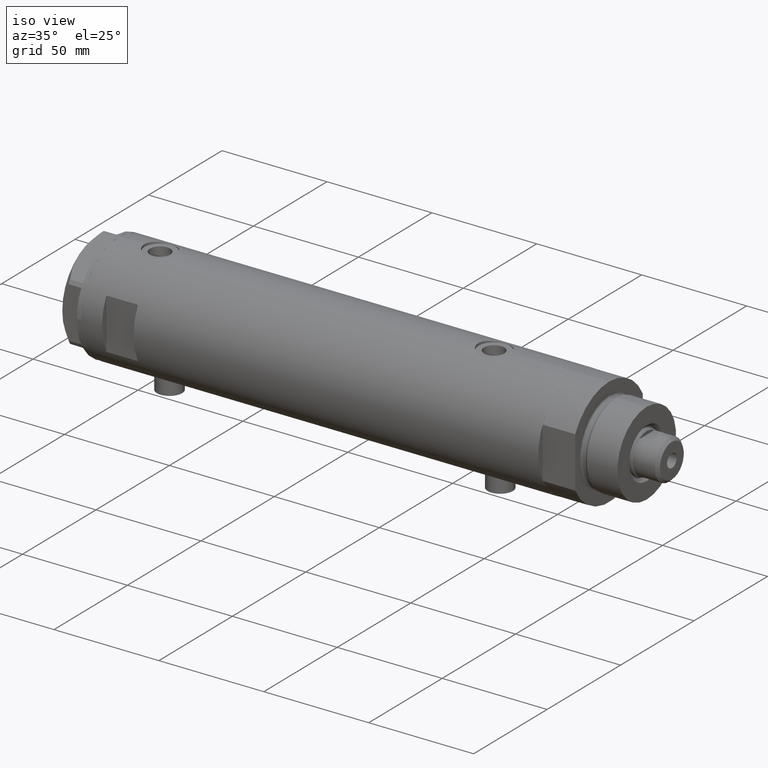
[diagram: clean part render]
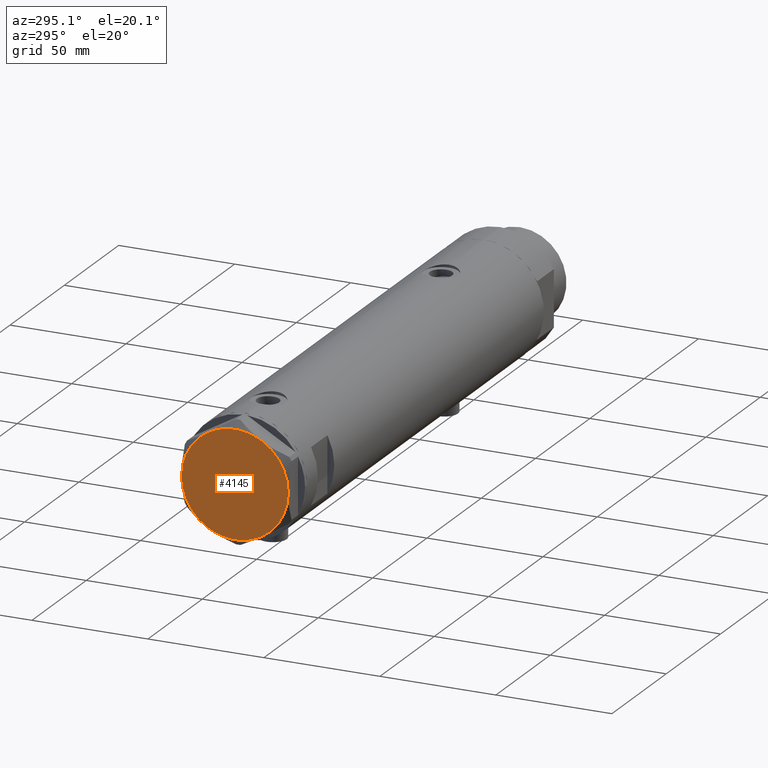
[diagram: tour spotlight — one face highlighted and labeled with its STEP entity id]
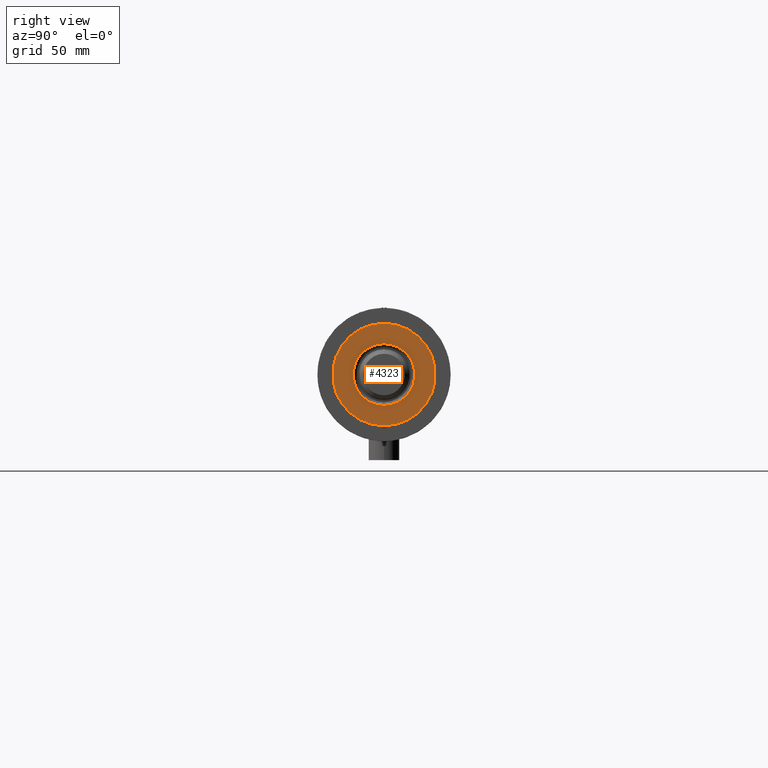
[diagram: tour spotlight — one face highlighted and labeled with its STEP entity id]
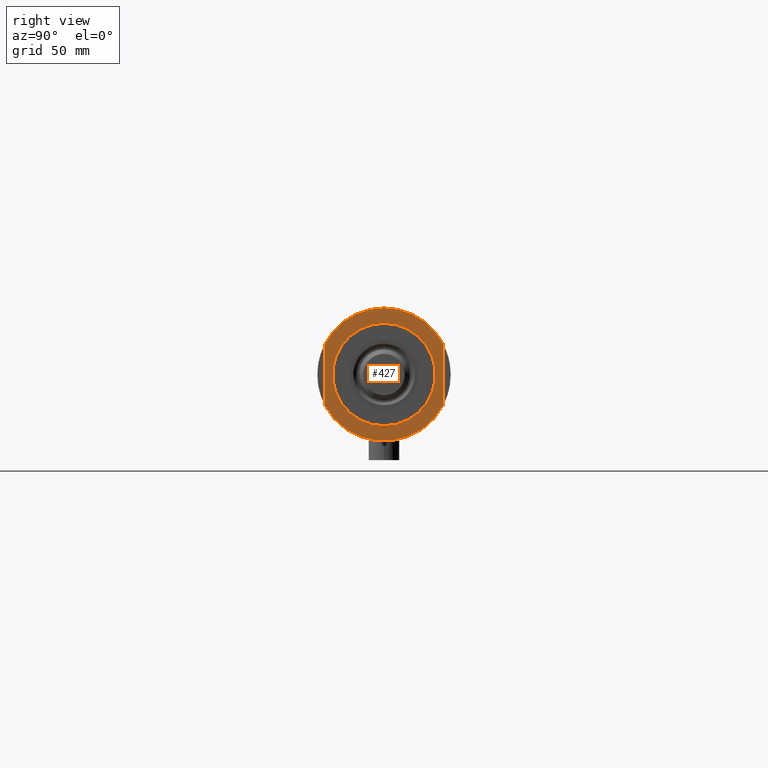
[diagram: tour spotlight — one face highlighted and labeled with its STEP entity id]
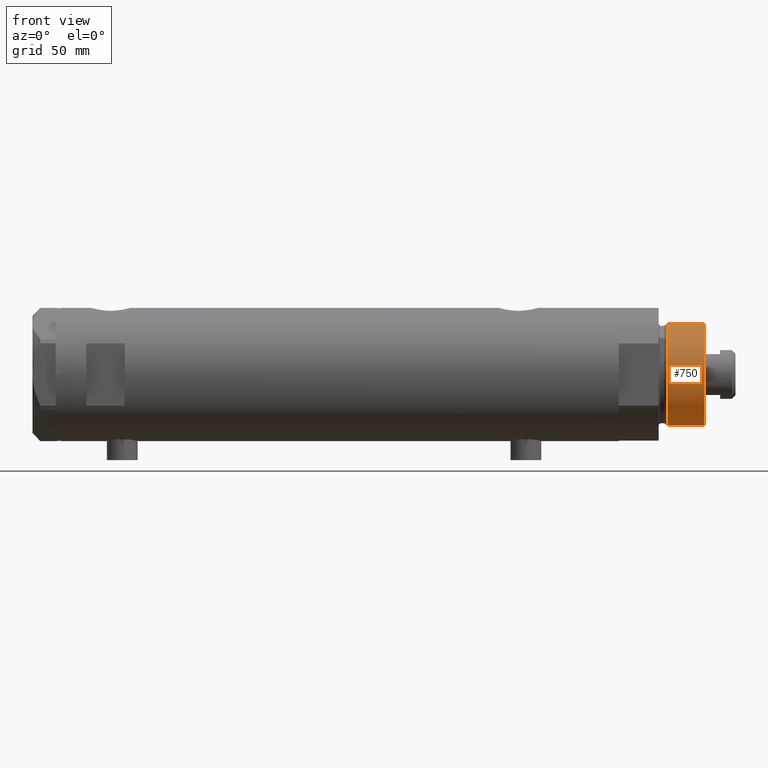
[diagram: tour spotlight — one face highlighted and labeled with its STEP entity id]
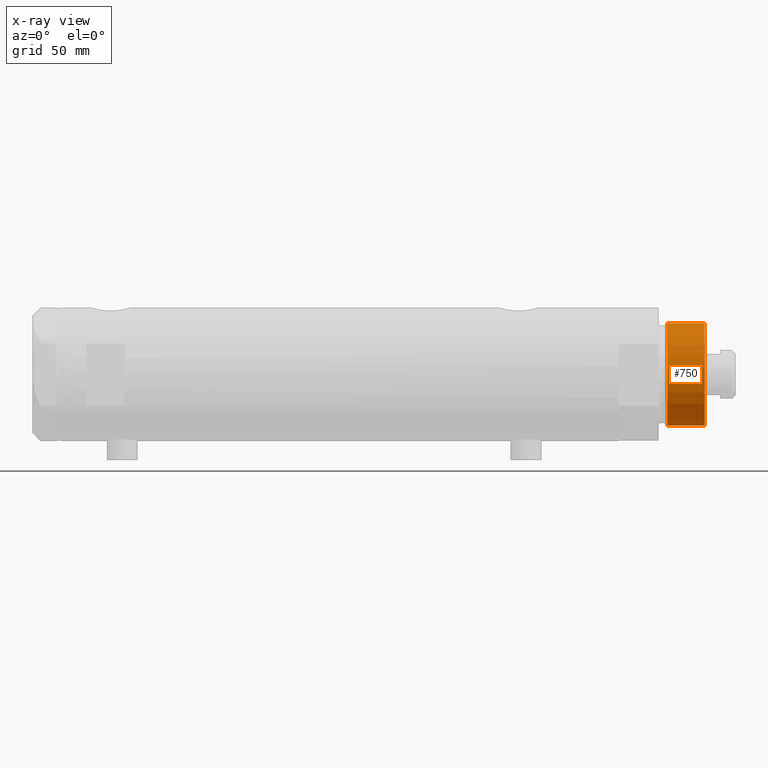
[diagram: x-ray of the same camera — body ghosted, this tour face saturated]
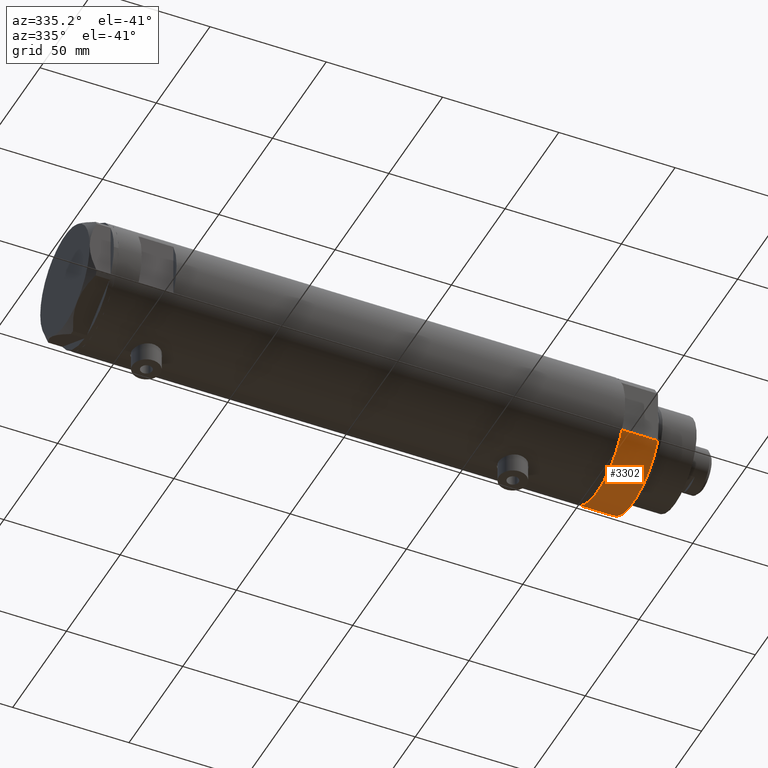
[diagram: tour spotlight — one face highlighted and labeled with its STEP entity id]
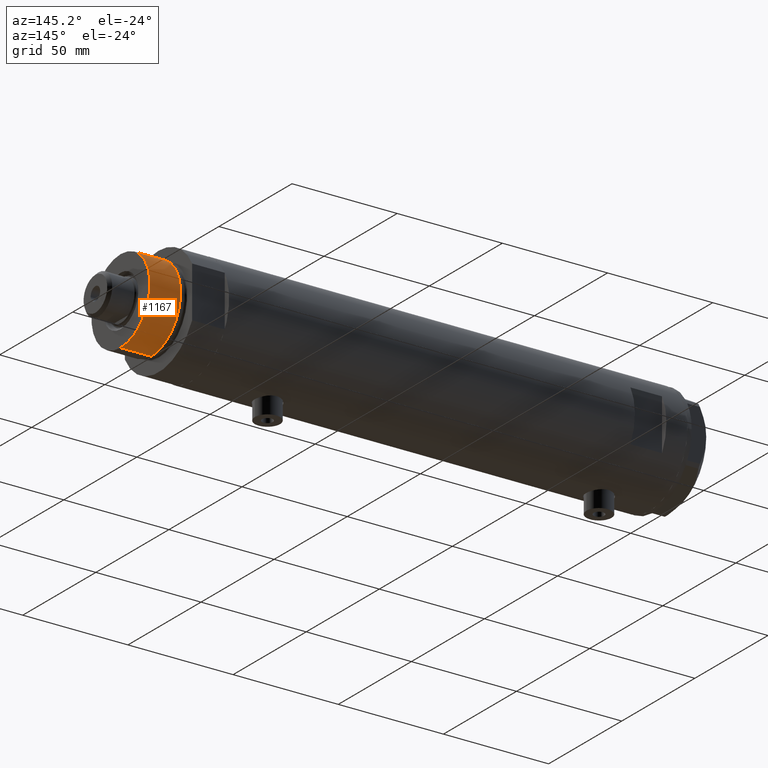
[diagram: tour spotlight — one face highlighted and labeled with its STEP entity id]
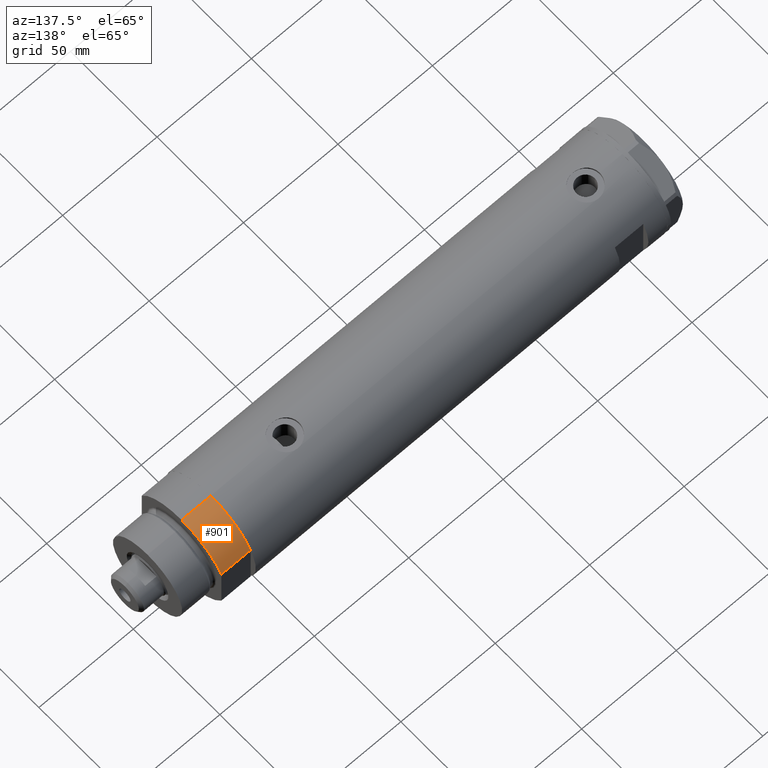
[diagram: tour spotlight — one face highlighted and labeled with its STEP entity id]
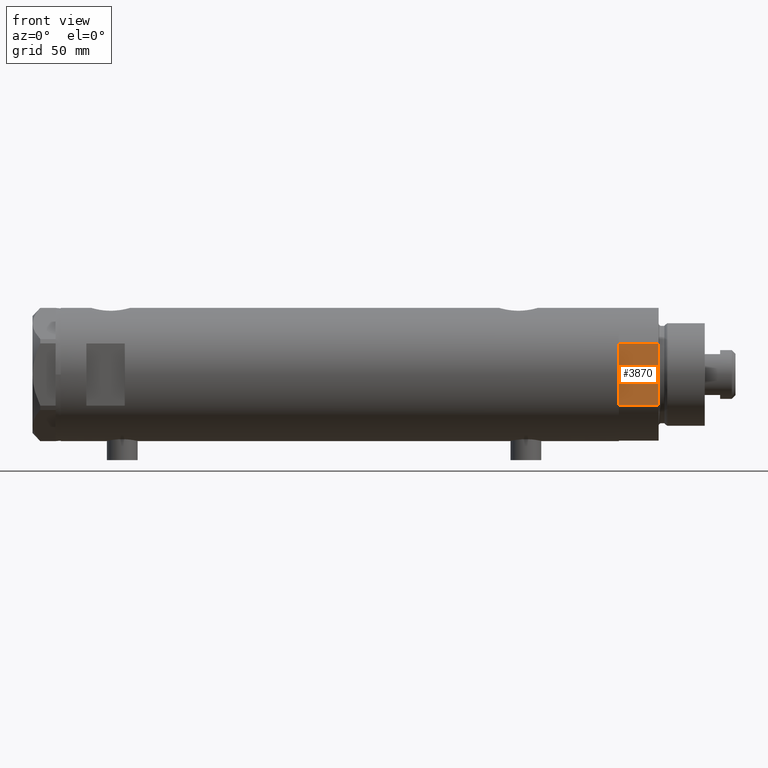
[diagram: tour spotlight — one face highlighted and labeled with its STEP entity id]
A machine part: a face-by-face anatomy tour. The part has 140 B-rep faces; the first image is the clean iso view, then the 8 largest visible faces are spotlighted one at a time (largest first), each with its STEP entity span.

Face 1 — auxiliary view, entity #4145. In plain terms, the highlighted planar face has unit normal (-1, -0, 0).
Definition (entity closure, byte-faithful):
#5 = DIRECTION ( 'NONE',  ( 1.000000000000000000, 0.000000000000000000, 0.000000000000000000 ) ) ;
#87 = CARTESIAN_POINT ( 'NONE',  ( 0.000000000000000000, 0.000000000000000000, 9.000000000000000000 ) ) ;
#93 = AXIS2_PLACEMENT_3D ( 'NONE', #3925, #370, #1601 ) ;
#98 = DIRECTION ( 'NONE',  ( 1.000000000000000000, 0.000000000000000000, -0.000000000000000000 ) ) ;
#157 = EDGE_CURVE ( 'NONE', #661, #2063, #911, .T. ) ;
#343 = CIRCLE ( 'NONE', #929, 23.00000000000004619 ) ;
#370 = DIRECTION ( 'NONE',  ( 0.000000000000000000, 0.000000000000000000, 1.000000000000000000 ) ) ;
#439 = VERTEX_POINT ( 'NONE', #3648 ) ;
#648 = EDGE_LOOP ( 'NONE', ( #3582, #3279, #3087, #4807, #4538, #1730 ) ) ;
#661 = VERTEX_POINT ( 'NONE', #1289 ) ;
#756 = CIRCLE ( 'NONE', #4861, 23.00000000000004619 ) ;
#792 = CARTESIAN_POINT ( 'NONE',  ( 0.000000000000000000, 0.000000000000000000, 9.000000000000000000 ) ) ;
#911 = CIRCLE ( 'NONE', #4174, 23.00000000000004619 ) ;
#924 = EDGE_CURVE ( 'NONE', #1787, #3481, #756, .T. ) ;
#929 = AXIS2_PLACEMENT_3D ( 'NONE', #792, #4748, #4353 ) ;
#1020 = CIRCLE ( 'NONE', #2529, 23.00000000000004619 ) ;
#1093 = DIRECTION ( 'NONE',  ( 0.000000000000000000, 0.000000000000000000, 1.000000000000000000 ) ) ;
#1289 = CARTESIAN_POINT ( 'NONE',  ( -23.00000000000004619, -8.112498833180673323E-14, 9.000000000000000000 ) ) ;
#1296 = DIRECTION ( 'NONE',  ( 1.000000000000000000, 0.000000000000000000, 0.000000000000000000 ) ) ;
#1335 = CARTESIAN_POINT ( 'NONE',  ( 22.99999999999995026, 2.373657066004705010E-13, 9.000000000000000000 ) ) ;
#1361 = EDGE_CURVE ( 'NONE', #439, #1504, #343, .T. ) ;
#1504 = VERTEX_POINT ( 'NONE', #4906 ) ;
#1601 = DIRECTION ( 'NONE',  ( 1.000000000000000000, 0.000000000000000000, 0.000000000000000000 ) ) ;
#1605 = CIRCLE ( 'NONE', #2855, 23.00000000000004619 ) ;
#1730 = ORIENTED_EDGE ( 'NONE', *, *, #5098, .T. ) ;
#1787 = VERTEX_POINT ( 'NONE', #4499 ) ;
#2028 = AXIS2_PLACEMENT_3D ( 'NONE', #2076, #4456, #98 ) ;
#2063 = VERTEX_POINT ( 'NONE', #4887 ) ;
#2076 = CARTESIAN_POINT ( 'NONE',  ( 0.000000000000000000, 0.000000000000000000, 9.000000000000000000 ) ) ;
#2083 = EDGE_CURVE ( 'NONE', #1504, #661, #1605, .T. ) ;
#2109 = DIRECTION ( 'NONE',  ( 1.000000000000000000, 0.000000000000000000, 0.000000000000000000 ) ) ;
#2358 = CIRCLE ( 'NONE', #93, 23.00000000000004619 ) ;
#2480 = PLANE ( 'NONE',  #2028 ) ;
#2486 = DIRECTION ( 'NONE',  ( 0.000000000000000000, 0.000000000000000000, 1.000000000000000000 ) ) ;
#2529 = AXIS2_PLACEMENT_3D ( 'NONE', #2662, #1093, #3034 ) ;
#2662 = CARTESIAN_POINT ( 'NONE',  ( 0.000000000000000000, 0.000000000000000000, 9.000000000000000000 ) ) ;
#2855 = AXIS2_PLACEMENT_3D ( 'NONE', #4062, #2486, #2109 ) ;
#3034 = DIRECTION ( 'NONE',  ( 1.000000000000000000, 0.000000000000000000, 0.000000000000000000 ) ) ;
#3087 = ORIENTED_EDGE ( 'NONE', *, *, #1361, .T. ) ;
#3135 = DIRECTION ( 'NONE',  ( 0.000000000000000000, 0.000000000000000000, 1.000000000000000000 ) ) ;
#3279 = ORIENTED_EDGE ( 'NONE', *, *, #4788, .T. ) ;
#3481 = VERTEX_POINT ( 'NONE', #1335 ) ;
#3582 = ORIENTED_EDGE ( 'NONE', *, *, #924, .T. ) ;
#3648 = CARTESIAN_POINT ( 'NONE',  ( 11.49999999999990408, 19.91858428704219364, 9.000000000000000000 ) ) ;
#3696 = FACE_OUTER_BOUND ( 'NONE', #648, .T. ) ;
#3925 = CARTESIAN_POINT ( 'NONE',  ( 0.000000000000000000, 0.000000000000000000, 9.000000000000000000 ) ) ;
#4062 = CARTESIAN_POINT ( 'NONE',  ( 0.000000000000000000, 0.000000000000000000, 9.000000000000000000 ) ) ;
#4145 = ADVANCED_FACE ( 'NONE', ( #3696 ), #2480, .T. ) ;
#4174 = AXIS2_PLACEMENT_3D ( 'NONE', #87, #5185, #1296 ) ;
#4353 = DIRECTION ( 'NONE',  ( 1.000000000000000000, 0.000000000000000000, 0.000000000000000000 ) ) ;
#4456 = DIRECTION ( 'NONE',  ( 0.000000000000000000, 0.000000000000000000, 1.000000000000000000 ) ) ;
#4499 = CARTESIAN_POINT ( 'NONE',  ( 11.50000000000018296, -19.91858428704203732, 9.000000000000000000 ) ) ;
#4538 = ORIENTED_EDGE ( 'NONE', *, *, #157, .T. ) ;
#4748 = DIRECTION ( 'NONE',  ( 0.000000000000000000, 0.000000000000000000, 1.000000000000000000 ) ) ;
#4788 = EDGE_CURVE ( 'NONE', #3481, #439, #2358, .T. ) ;
#4807 = ORIENTED_EDGE ( 'NONE', *, *, #2083, .T. ) ;
#4861 = AXIS2_PLACEMENT_3D ( 'NONE', #5161, #3135, #5 ) ;
#4887 = CARTESIAN_POINT ( 'NONE',  ( -11.49999999999990585, -19.91858428704219364, 9.000000000000000000 ) ) ;
#4906 = CARTESIAN_POINT ( 'NONE',  ( -11.50000000000004441, 19.91858428704211548, 9.000000000000000000 ) ) ;
#5098 = EDGE_CURVE ( 'NONE', #2063, #1787, #1020, .T. ) ;
#5161 = CARTESIAN_POINT ( 'NONE',  ( 0.000000000000000000, 0.000000000000000000, 9.000000000000000000 ) ) ;
#5185 = DIRECTION ( 'NONE',  ( 0.000000000000000000, 0.000000000000000000, 1.000000000000000000 ) ) ;

Face 2 — right view, entity #4323. In plain terms, the highlighted planar face has unit normal (1, 0, -0).
Definition (entity closure, byte-faithful):
#198 = PLANE ( 'NONE',  #519 ) ;
#218 = FACE_BOUND ( 'NONE', #4749, .T. ) ;
#519 = AXIS2_PLACEMENT_3D ( 'NONE', #1408, #5024, #670 ) ;
#550 = EDGE_LOOP ( 'NONE', ( #672, #1836 ) ) ;
#575 = DIRECTION ( 'NONE',  ( 1.000000000000000000, 0.000000000000000000, 0.000000000000000000 ) ) ;
#607 = DIRECTION ( 'NONE',  ( 0.000000000000000000, 0.000000000000000000, 1.000000000000000000 ) ) ;
#667 = EDGE_CURVE ( 'NONE', #3834, #4564, #1596, .T. ) ;
#670 = DIRECTION ( 'NONE',  ( 1.000000000000000000, 0.000000000000000000, -0.000000000000000000 ) ) ;
#672 = ORIENTED_EDGE ( 'NONE', *, *, #1321, .T. ) ;
#757 = CIRCLE ( 'NONE', #4181, 12.05000000000000426 ) ;
#872 = CARTESIAN_POINT ( 'NONE',  ( 12.05000000000000426, 0.000000000000000000, 33.50000000000000000 ) ) ;
#878 = CARTESIAN_POINT ( 'NONE',  ( -19.99999999999999645, 0.000000000000000000, 33.50000000000000000 ) ) ;
#1057 = DIRECTION ( 'NONE',  ( 1.000000000000000000, 0.000000000000000000, 0.000000000000000000 ) ) ;
#1321 = EDGE_CURVE ( 'NONE', #4564, #3834, #3687, .T. ) ;
#1408 = CARTESIAN_POINT ( 'NONE',  ( 0.000000000000000000, 0.000000000000000000, 33.50000000000000000 ) ) ;
#1596 = CIRCLE ( 'NONE', #1842, 19.99999999999999645 ) ;
#1600 = AXIS2_PLACEMENT_3D ( 'NONE', #4993, #607, #3016 ) ;
#1654 = DIRECTION ( 'NONE',  ( 1.000000000000000000, 0.000000000000000000, 0.000000000000000000 ) ) ;
#1712 = CARTESIAN_POINT ( 'NONE',  ( 0.000000000000000000, 0.000000000000000000, 33.50000000000000000 ) ) ;
#1832 = FACE_OUTER_BOUND ( 'NONE', #550, .T. ) ;
#1836 = ORIENTED_EDGE ( 'NONE', *, *, #667, .T. ) ;
#1842 = AXIS2_PLACEMENT_3D ( 'NONE', #4165, #2889, #575 ) ;
#2239 = CARTESIAN_POINT ( 'NONE',  ( 0.000000000000000000, 0.000000000000000000, 33.50000000000000000 ) ) ;
#2354 = AXIS2_PLACEMENT_3D ( 'NONE', #1712, #4768, #1654 ) ;
#2889 = DIRECTION ( 'NONE',  ( 0.000000000000000000, 0.000000000000000000, 1.000000000000000000 ) ) ;
#2898 = EDGE_CURVE ( 'NONE', #3795, #4660, #757, .T. ) ;
#3016 = DIRECTION ( 'NONE',  ( 1.000000000000000000, 0.000000000000000000, 0.000000000000000000 ) ) ;
#3687 = CIRCLE ( 'NONE', #1600, 19.99999999999999645 ) ;
#3795 = VERTEX_POINT ( 'NONE', #872 ) ;
#3834 = VERTEX_POINT ( 'NONE', #4490 ) ;
#4106 = EDGE_CURVE ( 'NONE', #4660, #3795, #5126, .T. ) ;
#4165 = CARTESIAN_POINT ( 'NONE',  ( 0.000000000000000000, 0.000000000000000000, 33.50000000000000000 ) ) ;
#4181 = AXIS2_PLACEMENT_3D ( 'NONE', #2239, #4653, #1057 ) ;
#4323 = ADVANCED_FACE ( 'NONE', ( #218, #1832 ), #198, .T. ) ;
#4405 = ORIENTED_EDGE ( 'NONE', *, *, #2898, .T. ) ;
#4413 = ORIENTED_EDGE ( 'NONE', *, *, #4106, .T. ) ;
#4490 = CARTESIAN_POINT ( 'NONE',  ( 19.99999999999999645, 2.449293598294706119E-15, 33.50000000000000000 ) ) ;
#4564 = VERTEX_POINT ( 'NONE', #878 ) ;
#4653 = DIRECTION ( 'NONE',  ( -0.000000000000000000, -0.000000000000000000, -1.000000000000000000 ) ) ;
#4660 = VERTEX_POINT ( 'NONE', #5063 ) ;
#4749 = EDGE_LOOP ( 'NONE', ( #4405, #4413 ) ) ;
#4768 = DIRECTION ( 'NONE',  ( -0.000000000000000000, -0.000000000000000000, -1.000000000000000000 ) ) ;
#4993 = CARTESIAN_POINT ( 'NONE',  ( 0.000000000000000000, 0.000000000000000000, 33.50000000000000000 ) ) ;
#5024 = DIRECTION ( 'NONE',  ( 0.000000000000000000, 0.000000000000000000, 1.000000000000000000 ) ) ;
#5063 = CARTESIAN_POINT ( 'NONE',  ( -12.05000000000000426, 1.475699392972560823E-15, 33.50000000000000000 ) ) ;
#5126 = CIRCLE ( 'NONE', #2354, 12.05000000000000426 ) ;

Face 3 — right view, entity #427. In plain terms, the highlighted planar face has unit normal (1, 0, -0).
Definition (entity closure, byte-faithful):
#30 = FACE_BOUND ( 'NONE', #3714, .T. ) ;
#44 = LINE ( 'NONE', #1174, #1110 ) ;
#53 = DIRECTION ( 'NONE',  ( 0.000000000000000000, 0.000000000000000000, 1.000000000000000000 ) ) ;
#130 = CARTESIAN_POINT ( 'NONE',  ( 20.00000000000000000, 0.000000000000000000, 15.50000000000000000 ) ) ;
#153 = LINE ( 'NONE', #2548, #1346 ) ;
#225 = CARTESIAN_POINT ( 'NONE',  ( 0.000000000000000000, 0.000000000000000000, 15.50000000000000000 ) ) ;
#238 = ORIENTED_EDGE ( 'NONE', *, *, #647, .T. ) ;
#406 = EDGE_CURVE ( 'NONE', #2815, #3760, #4603, .T. ) ;
#427 = ADVANCED_FACE ( 'NONE', ( #30, #4466 ), #1189, .T. ) ;
#440 = DIRECTION ( 'NONE',  ( 1.000000000000000000, 0.000000000000000000, 0.000000000000000000 ) ) ;
#502 = CIRCLE ( 'NONE', #3103, 20.00000000000000000 ) ;
#627 = DIRECTION ( 'NONE',  ( 1.000000000000000000, 0.000000000000000000, 0.000000000000000000 ) ) ;
#647 = EDGE_CURVE ( 'NONE', #3698, #2815, #1418, .T. ) ;
#649 = DIRECTION ( 'NONE',  ( 1.000000000000000000, 0.000000000000000000, 0.000000000000000000 ) ) ;
#818 = CARTESIAN_POINT ( 'NONE',  ( 12.12435565298215323, -22.99999999999999645, 15.50000000000000000 ) ) ;
#873 = DIRECTION ( 'NONE',  ( 1.000000000000000000, 0.000000000000000000, -0.000000000000000000 ) ) ;
#877 = DIRECTION ( 'NONE',  ( 1.000000000000000000, 0.000000000000000000, 0.000000000000000000 ) ) ;
#977 = CARTESIAN_POINT ( 'NONE',  ( 0.000000000000000000, 0.000000000000000000, 15.50000000000000000 ) ) ;
#1110 = VECTOR ( 'NONE', #440, 1000.000000000000000 ) ;
#1162 = VERTEX_POINT ( 'NONE', #130 ) ;
#1174 = CARTESIAN_POINT ( 'NONE',  ( -12.12435565298215145, 23.00000000000000355, 15.50000000000000000 ) ) ;
#1189 = PLANE ( 'NONE',  #2584 ) ;
#1346 = VECTOR ( 'NONE', #4067, 1000.000000000000000 ) ;
#1392 = VERTEX_POINT ( 'NONE', #3981 ) ;
#1418 = CIRCLE ( 'NONE', #2093, 26.00000000000000355 ) ;
#1639 = DIRECTION ( 'NONE',  ( 1.000000000000000000, 0.000000000000000000, 0.000000000000000000 ) ) ;
#1741 = CARTESIAN_POINT ( 'NONE',  ( 0.000000000000000000, 0.000000000000000000, 15.50000000000000000 ) ) ;
#2034 = AXIS2_PLACEMENT_3D ( 'NONE', #225, #4240, #649 ) ;
#2093 = AXIS2_PLACEMENT_3D ( 'NONE', #977, #2568, #2942 ) ;
#2162 = CARTESIAN_POINT ( 'NONE',  ( 0.000000000000000000, 0.000000000000000000, 15.50000000000000000 ) ) ;
#2267 = ORIENTED_EDGE ( 'NONE', *, *, #3015, .F. ) ;
#2277 = AXIS2_PLACEMENT_3D ( 'NONE', #1741, #4146, #627 ) ;
#2350 = EDGE_LOOP ( 'NONE', ( #2267, #4133, #2490, #238, #4125 ) ) ;
#2469 = DIRECTION ( 'NONE',  ( -0.000000000000000000, -0.000000000000000000, -1.000000000000000000 ) ) ;
#2490 = ORIENTED_EDGE ( 'NONE', *, *, #4913, .F. ) ;
#2548 = CARTESIAN_POINT ( 'NONE',  ( -12.12435565298215145, -22.99999999999999645, 15.50000000000000000 ) ) ;
#2568 = DIRECTION ( 'NONE',  ( 0.000000000000000000, 0.000000000000000000, 1.000000000000000000 ) ) ;
#2584 = AXIS2_PLACEMENT_3D ( 'NONE', #3254, #3230, #873 ) ;
#2693 = CIRCLE ( 'NONE', #2277, 26.00000000000000355 ) ;
#2792 = CARTESIAN_POINT ( 'NONE',  ( 0.000000000000000000, 0.000000000000000000, 15.50000000000000000 ) ) ;
#2815 = VERTEX_POINT ( 'NONE', #5137 ) ;
#2942 = DIRECTION ( 'NONE',  ( 1.000000000000000000, 0.000000000000000000, 0.000000000000000000 ) ) ;
#2947 = VERTEX_POINT ( 'NONE', #3557 ) ;
#3015 = EDGE_CURVE ( 'NONE', #3822, #3760, #153, .T. ) ;
#3055 = EDGE_CURVE ( 'NONE', #1162, #2947, #502, .T. ) ;
#3103 = AXIS2_PLACEMENT_3D ( 'NONE', #2162, #2469, #877 ) ;
#3230 = DIRECTION ( 'NONE',  ( 0.000000000000000000, 0.000000000000000000, 1.000000000000000000 ) ) ;
#3254 = CARTESIAN_POINT ( 'NONE',  ( 0.000000000000000000, 0.000000000000000000, 15.50000000000000000 ) ) ;
#3265 = ORIENTED_EDGE ( 'NONE', *, *, #3055, .T. ) ;
#3557 = CARTESIAN_POINT ( 'NONE',  ( -20.00000000000000000, 2.449293598294706513E-15, 15.50000000000000000 ) ) ;
#3698 = VERTEX_POINT ( 'NONE', #4702 ) ;
#3714 = EDGE_LOOP ( 'NONE', ( #3265, #4446 ) ) ;
#3760 = VERTEX_POINT ( 'NONE', #4435 ) ;
#3822 = VERTEX_POINT ( 'NONE', #818 ) ;
#3967 = EDGE_CURVE ( 'NONE', #3822, #1392, #2693, .T. ) ;
#3981 = CARTESIAN_POINT ( 'NONE',  ( 12.12435565298214790, 23.00000000000000355, 15.50000000000000000 ) ) ;
#4067 = DIRECTION ( 'NONE',  ( -1.000000000000000000, -0.000000000000000000, -0.000000000000000000 ) ) ;
#4125 = ORIENTED_EDGE ( 'NONE', *, *, #406, .T. ) ;
#4133 = ORIENTED_EDGE ( 'NONE', *, *, #3967, .T. ) ;
#4146 = DIRECTION ( 'NONE',  ( 0.000000000000000000, 0.000000000000000000, 1.000000000000000000 ) ) ;
#4240 = DIRECTION ( 'NONE',  ( -0.000000000000000000, -0.000000000000000000, -1.000000000000000000 ) ) ;
#4435 = CARTESIAN_POINT ( 'NONE',  ( -12.12435565298215323, -22.99999999999999645, 15.50000000000000000 ) ) ;
#4446 = ORIENTED_EDGE ( 'NONE', *, *, #4754, .T. ) ;
#4466 = FACE_OUTER_BOUND ( 'NONE', #2350, .T. ) ;
#4603 = CIRCLE ( 'NONE', #5021, 26.00000000000000355 ) ;
#4702 = CARTESIAN_POINT ( 'NONE',  ( -12.12435565298214613, 23.00000000000000355, 15.50000000000000000 ) ) ;
#4754 = EDGE_CURVE ( 'NONE', #2947, #1162, #4873, .T. ) ;
#4873 = CIRCLE ( 'NONE', #2034, 20.00000000000000000 ) ;
#4913 = EDGE_CURVE ( 'NONE', #3698, #1392, #44, .T. ) ;
#5021 = AXIS2_PLACEMENT_3D ( 'NONE', #2792, #53, #1639 ) ;
#5137 = CARTESIAN_POINT ( 'NONE',  ( -26.00000000000000355, 0.000000000000000000, 15.50000000000000000 ) ) ;

Face 4 — front view, entity #750. An x-ray twin of the same camera follows (body ghosted, this face saturated) — the face is partly hidden behind the body. In plain terms, the highlighted cylindrical surface (partial cylindrical patch) has radius 20 mm, axis along (-1, -0, 0).
Definition (entity closure, byte-faithful):
#536 = ORIENTED_EDGE ( 'NONE', *, *, #2527, .F. ) ;
#607 = DIRECTION ( 'NONE',  ( 0.000000000000000000, 0.000000000000000000, 1.000000000000000000 ) ) ;
#686 = FACE_OUTER_BOUND ( 'NONE', #4852, .T. ) ;
#733 = VERTEX_POINT ( 'NONE', #4621 ) ;
#750 = ADVANCED_FACE ( 'NONE', ( #686 ), #1476, .T. ) ;
#811 = CARTESIAN_POINT ( 'NONE',  ( 19.99999999999999645, 2.449293598294706119E-15, 18.87384048104053846 ) ) ;
#878 = CARTESIAN_POINT ( 'NONE',  ( -19.99999999999999645, 0.000000000000000000, 33.50000000000000000 ) ) ;
#948 = DIRECTION ( 'NONE',  ( 1.000000000000000000, 0.000000000000000000, 0.000000000000000000 ) ) ;
#1086 = CARTESIAN_POINT ( 'NONE',  ( 19.99999999999999645, 2.449293598294706119E-15, 33.50000000000000000 ) ) ;
#1092 = AXIS2_PLACEMENT_3D ( 'NONE', #2403, #1503, #948 ) ;
#1104 = DIRECTION ( 'NONE',  ( -0.000000000000000000, -0.000000000000000000, -1.000000000000000000 ) ) ;
#1321 = EDGE_CURVE ( 'NONE', #4564, #3834, #3687, .T. ) ;
#1360 = VECTOR ( 'NONE', #1643, 1000.000000000000000 ) ;
#1476 = CYLINDRICAL_SURFACE ( 'NONE', #1767, 19.99999999999999645 ) ;
#1502 = EDGE_CURVE ( 'NONE', #733, #4118, #4866, .T. ) ;
#1503 = DIRECTION ( 'NONE',  ( -0.000000000000000000, -0.000000000000000000, 1.000000000000000000 ) ) ;
#1600 = AXIS2_PLACEMENT_3D ( 'NONE', #4993, #607, #3016 ) ;
#1643 = DIRECTION ( 'NONE',  ( -0.000000000000000000, -0.000000000000000000, -1.000000000000000000 ) ) ;
#1767 = AXIS2_PLACEMENT_3D ( 'NONE', #2311, #1104, #2707 ) ;
#2304 = ORIENTED_EDGE ( 'NONE', *, *, #1321, .F. ) ;
#2311 = CARTESIAN_POINT ( 'NONE',  ( 0.000000000000000000, 0.000000000000000000, 33.50000000000000000 ) ) ;
#2403 = CARTESIAN_POINT ( 'NONE',  ( 0.000000000000000000, 0.000000000000000000, 18.87384048104053846 ) ) ;
#2470 = LINE ( 'NONE', #4834, #1360 ) ;
#2527 = EDGE_CURVE ( 'NONE', #3834, #4118, #4234, .T. ) ;
#2707 = DIRECTION ( 'NONE',  ( -1.000000000000000000, 0.000000000000000000, 0.000000000000000000 ) ) ;
#3016 = DIRECTION ( 'NONE',  ( 1.000000000000000000, 0.000000000000000000, 0.000000000000000000 ) ) ;
#3687 = CIRCLE ( 'NONE', #1600, 19.99999999999999645 ) ;
#3834 = VERTEX_POINT ( 'NONE', #4490 ) ;
#4098 = VECTOR ( 'NONE', #4138, 1000.000000000000000 ) ;
#4118 = VERTEX_POINT ( 'NONE', #811 ) ;
#4138 = DIRECTION ( 'NONE',  ( -0.000000000000000000, -0.000000000000000000, -1.000000000000000000 ) ) ;
#4234 = LINE ( 'NONE', #1086, #4098 ) ;
#4490 = CARTESIAN_POINT ( 'NONE',  ( 19.99999999999999645, 2.449293598294706119E-15, 33.50000000000000000 ) ) ;
#4564 = VERTEX_POINT ( 'NONE', #878 ) ;
#4567 = EDGE_CURVE ( 'NONE', #4564, #733, #2470, .T. ) ;
#4585 = ORIENTED_EDGE ( 'NONE', *, *, #1502, .T. ) ;
#4621 = CARTESIAN_POINT ( 'NONE',  ( -19.99999999999999645, 0.000000000000000000, 18.87384048104053846 ) ) ;
#4834 = CARTESIAN_POINT ( 'NONE',  ( -19.99999999999999645, 0.000000000000000000, 33.50000000000000000 ) ) ;
#4852 = EDGE_LOOP ( 'NONE', ( #536, #2304, #4939, #4585 ) ) ;
#4866 = CIRCLE ( 'NONE', #1092, 19.99999999999999645 ) ;
#4939 = ORIENTED_EDGE ( 'NONE', *, *, #4567, .T. ) ;
#4993 = CARTESIAN_POINT ( 'NONE',  ( 0.000000000000000000, 0.000000000000000000, 33.50000000000000000 ) ) ;

Face 5 — auxiliary view, entity #3302. In plain terms, the highlighted cylindrical surface (partial cylindrical patch) has radius 26 mm, axis along (-1, -0, 0).
Definition (entity closure, byte-faithful):
#173 = AXIS2_PLACEMENT_3D ( 'NONE', #1437, #5057, #3399 ) ;
#181 = VECTOR ( 'NONE', #2582, 1000.000000000000000 ) ;
#221 = LINE ( 'NONE', #1495, #181 ) ;
#401 = VERTEX_POINT ( 'NONE', #2387 ) ;
#510 = VECTOR ( 'NONE', #1777, 1000.000000000000000 ) ;
#627 = DIRECTION ( 'NONE',  ( 1.000000000000000000, 0.000000000000000000, 0.000000000000000000 ) ) ;
#818 = CARTESIAN_POINT ( 'NONE',  ( 12.12435565298215323, -22.99999999999999645, 15.50000000000000000 ) ) ;
#839 = CARTESIAN_POINT ( 'NONE',  ( 0.000000000000000000, 0.000000000000000000, 15.50000000000000000 ) ) ;
#1182 = CIRCLE ( 'NONE', #173, 26.00000000000000355 ) ;
#1392 = VERTEX_POINT ( 'NONE', #3981 ) ;
#1437 = CARTESIAN_POINT ( 'NONE',  ( 0.000000000000000000, 0.000000000000000000, 0.000000000000000000 ) ) ;
#1495 = CARTESIAN_POINT ( 'NONE',  ( 12.12435565298215323, 23.00000000000000355, 0.000000000000000000 ) ) ;
#1554 = ORIENTED_EDGE ( 'NONE', *, *, #5133, .T. ) ;
#1741 = CARTESIAN_POINT ( 'NONE',  ( 0.000000000000000000, 0.000000000000000000, 15.50000000000000000 ) ) ;
#1777 = DIRECTION ( 'NONE',  ( -0.000000000000000000, -0.000000000000000000, 1.000000000000000000 ) ) ;
#1861 = EDGE_CURVE ( 'NONE', #401, #3822, #2262, .T. ) ;
#1914 = VERTEX_POINT ( 'NONE', #3907 ) ;
#2262 = LINE ( 'NONE', #4628, #510 ) ;
#2277 = AXIS2_PLACEMENT_3D ( 'NONE', #1741, #4146, #627 ) ;
#2384 = CYLINDRICAL_SURFACE ( 'NONE', #4864, 26.00000000000000355 ) ;
#2387 = CARTESIAN_POINT ( 'NONE',  ( 12.12435565298215323, -22.99999999999999645, 0.000000000000000000 ) ) ;
#2582 = DIRECTION ( 'NONE',  ( -0.000000000000000000, -0.000000000000000000, 1.000000000000000000 ) ) ;
#2693 = CIRCLE ( 'NONE', #2277, 26.00000000000000355 ) ;
#2787 = FACE_OUTER_BOUND ( 'NONE', #3518, .T. ) ;
#3302 = ADVANCED_FACE ( 'NONE', ( #2787 ), #2384, .T. ) ;
#3333 = ORIENTED_EDGE ( 'NONE', *, *, #4236, .T. ) ;
#3399 = DIRECTION ( 'NONE',  ( 1.000000000000000000, 0.000000000000000000, 0.000000000000000000 ) ) ;
#3518 = EDGE_LOOP ( 'NONE', ( #4705, #4720, #3333, #1554 ) ) ;
#3822 = VERTEX_POINT ( 'NONE', #818 ) ;
#3907 = CARTESIAN_POINT ( 'NONE',  ( 12.12435565298214080, 23.00000000000000355, 0.000000000000000000 ) ) ;
#3967 = EDGE_CURVE ( 'NONE', #3822, #1392, #2693, .T. ) ;
#3981 = CARTESIAN_POINT ( 'NONE',  ( 12.12435565298214790, 23.00000000000000355, 15.50000000000000000 ) ) ;
#3983 = DIRECTION ( 'NONE',  ( -0.000000000000000000, -0.000000000000000000, -1.000000000000000000 ) ) ;
#4146 = DIRECTION ( 'NONE',  ( 0.000000000000000000, 0.000000000000000000, 1.000000000000000000 ) ) ;
#4236 = EDGE_CURVE ( 'NONE', #401, #1914, #1182, .T. ) ;
#4628 = CARTESIAN_POINT ( 'NONE',  ( 12.12435565298215323, -22.99999999999999645, 0.000000000000000000 ) ) ;
#4705 = ORIENTED_EDGE ( 'NONE', *, *, #3967, .F. ) ;
#4720 = ORIENTED_EDGE ( 'NONE', *, *, #1861, .F. ) ;
#4728 = DIRECTION ( 'NONE',  ( -1.000000000000000000, 0.000000000000000000, 0.000000000000000000 ) ) ;
#4864 = AXIS2_PLACEMENT_3D ( 'NONE', #839, #3983, #4728 ) ;
#5057 = DIRECTION ( 'NONE',  ( 0.000000000000000000, 0.000000000000000000, 1.000000000000000000 ) ) ;
#5133 = EDGE_CURVE ( 'NONE', #1914, #1392, #221, .T. ) ;

Face 6 — auxiliary view, entity #1167. In plain terms, the highlighted cylindrical surface (partial cylindrical patch) has radius 20 mm, axis along (-1, -0, 0).
Definition (entity closure, byte-faithful):
#557 = CARTESIAN_POINT ( 'NONE',  ( 0.000000000000000000, 0.000000000000000000, 33.50000000000000000 ) ) ;
#575 = DIRECTION ( 'NONE',  ( 1.000000000000000000, 0.000000000000000000, 0.000000000000000000 ) ) ;
#667 = EDGE_CURVE ( 'NONE', #3834, #4564, #1596, .T. ) ;
#733 = VERTEX_POINT ( 'NONE', #4621 ) ;
#740 = ORIENTED_EDGE ( 'NONE', *, *, #2527, .T. ) ;
#811 = CARTESIAN_POINT ( 'NONE',  ( 19.99999999999999645, 2.449293598294706119E-15, 18.87384048104053846 ) ) ;
#878 = CARTESIAN_POINT ( 'NONE',  ( -19.99999999999999645, 0.000000000000000000, 33.50000000000000000 ) ) ;
#1086 = CARTESIAN_POINT ( 'NONE',  ( 19.99999999999999645, 2.449293598294706119E-15, 33.50000000000000000 ) ) ;
#1167 = ADVANCED_FACE ( 'NONE', ( #4550 ), #4148, .T. ) ;
#1360 = VECTOR ( 'NONE', #1643, 1000.000000000000000 ) ;
#1384 = CARTESIAN_POINT ( 'NONE',  ( 0.000000000000000000, 0.000000000000000000, 18.87384048104053846 ) ) ;
#1596 = CIRCLE ( 'NONE', #1842, 19.99999999999999645 ) ;
#1643 = DIRECTION ( 'NONE',  ( -0.000000000000000000, -0.000000000000000000, -1.000000000000000000 ) ) ;
#1781 = DIRECTION ( 'NONE',  ( -0.000000000000000000, -0.000000000000000000, 1.000000000000000000 ) ) ;
#1842 = AXIS2_PLACEMENT_3D ( 'NONE', #4165, #2889, #575 ) ;
#2030 = CIRCLE ( 'NONE', #5036, 19.99999999999999645 ) ;
#2470 = LINE ( 'NONE', #4834, #1360 ) ;
#2475 = ORIENTED_EDGE ( 'NONE', *, *, #4567, .F. ) ;
#2527 = EDGE_CURVE ( 'NONE', #3834, #4118, #4234, .T. ) ;
#2664 = EDGE_CURVE ( 'NONE', #4118, #733, #2030, .T. ) ;
#2889 = DIRECTION ( 'NONE',  ( 0.000000000000000000, 0.000000000000000000, 1.000000000000000000 ) ) ;
#3329 = ORIENTED_EDGE ( 'NONE', *, *, #2664, .T. ) ;
#3373 = DIRECTION ( 'NONE',  ( 1.000000000000000000, 0.000000000000000000, 0.000000000000000000 ) ) ;
#3723 = ORIENTED_EDGE ( 'NONE', *, *, #667, .F. ) ;
#3834 = VERTEX_POINT ( 'NONE', #4490 ) ;
#3843 = AXIS2_PLACEMENT_3D ( 'NONE', #557, #4167, #4624 ) ;
#4098 = VECTOR ( 'NONE', #4138, 1000.000000000000000 ) ;
#4118 = VERTEX_POINT ( 'NONE', #811 ) ;
#4138 = DIRECTION ( 'NONE',  ( -0.000000000000000000, -0.000000000000000000, -1.000000000000000000 ) ) ;
#4148 = CYLINDRICAL_SURFACE ( 'NONE', #3843, 19.99999999999999645 ) ;
#4165 = CARTESIAN_POINT ( 'NONE',  ( 0.000000000000000000, 0.000000000000000000, 33.50000000000000000 ) ) ;
#4167 = DIRECTION ( 'NONE',  ( -0.000000000000000000, -0.000000000000000000, -1.000000000000000000 ) ) ;
#4234 = LINE ( 'NONE', #1086, #4098 ) ;
#4490 = CARTESIAN_POINT ( 'NONE',  ( 19.99999999999999645, 2.449293598294706119E-15, 33.50000000000000000 ) ) ;
#4550 = FACE_OUTER_BOUND ( 'NONE', #5027, .T. ) ;
#4564 = VERTEX_POINT ( 'NONE', #878 ) ;
#4567 = EDGE_CURVE ( 'NONE', #4564, #733, #2470, .T. ) ;
#4621 = CARTESIAN_POINT ( 'NONE',  ( -19.99999999999999645, 0.000000000000000000, 18.87384048104053846 ) ) ;
#4624 = DIRECTION ( 'NONE',  ( -1.000000000000000000, 0.000000000000000000, 0.000000000000000000 ) ) ;
#4834 = CARTESIAN_POINT ( 'NONE',  ( -19.99999999999999645, 0.000000000000000000, 33.50000000000000000 ) ) ;
#5027 = EDGE_LOOP ( 'NONE', ( #3723, #740, #3329, #2475 ) ) ;
#5036 = AXIS2_PLACEMENT_3D ( 'NONE', #1384, #1781, #3373 ) ;

Face 7 — auxiliary view, entity #901. In plain terms, the highlighted cylindrical surface (partial cylindrical patch) has radius 26 mm, axis along (-1, -0, 0).
Definition (entity closure, byte-faithful):
#96 = EDGE_CURVE ( 'NONE', #2815, #2807, #1220, .T. ) ;
#299 = ORIENTED_EDGE ( 'NONE', *, *, #2788, .T. ) ;
#499 = CARTESIAN_POINT ( 'NONE',  ( -12.12435565298215145, 23.00000000000000355, 0.000000000000000000 ) ) ;
#647 = EDGE_CURVE ( 'NONE', #3698, #2815, #1418, .T. ) ;
#698 = CARTESIAN_POINT ( 'NONE',  ( 0.000000000000000000, 0.000000000000000000, 0.000000000000000000 ) ) ;
#714 = EDGE_CURVE ( 'NONE', #2757, #3698, #2488, .T. ) ;
#901 = ADVANCED_FACE ( 'NONE', ( #2192 ), #3787, .T. ) ;
#977 = CARTESIAN_POINT ( 'NONE',  ( 0.000000000000000000, 0.000000000000000000, 15.50000000000000000 ) ) ;
#1082 = DIRECTION ( 'NONE',  ( 0.000000000000000000, 0.000000000000000000, 1.000000000000000000 ) ) ;
#1220 = LINE ( 'NONE', #4418, #1413 ) ;
#1413 = VECTOR ( 'NONE', #2819, 1000.000000000000000 ) ;
#1418 = CIRCLE ( 'NONE', #2093, 26.00000000000000355 ) ;
#1658 = ORIENTED_EDGE ( 'NONE', *, *, #96, .F. ) ;
#1804 = DIRECTION ( 'NONE',  ( -0.000000000000000000, -0.000000000000000000, -1.000000000000000000 ) ) ;
#1827 = CARTESIAN_POINT ( 'NONE',  ( 0.000000000000000000, 0.000000000000000000, 15.50000000000000000 ) ) ;
#1854 = ORIENTED_EDGE ( 'NONE', *, *, #714, .F. ) ;
#1932 = DIRECTION ( 'NONE',  ( 1.000000000000000000, 0.000000000000000000, 0.000000000000000000 ) ) ;
#2093 = AXIS2_PLACEMENT_3D ( 'NONE', #977, #2568, #2942 ) ;
#2173 = VECTOR ( 'NONE', #3777, 1000.000000000000000 ) ;
#2192 = FACE_OUTER_BOUND ( 'NONE', #2434, .T. ) ;
#2434 = EDGE_LOOP ( 'NONE', ( #1658, #5096, #1854, #299 ) ) ;
#2488 = LINE ( 'NONE', #499, #2173 ) ;
#2530 = CARTESIAN_POINT ( 'NONE',  ( -12.12435565298215145, 23.00000000000000355, 0.000000000000000000 ) ) ;
#2568 = DIRECTION ( 'NONE',  ( 0.000000000000000000, 0.000000000000000000, 1.000000000000000000 ) ) ;
#2757 = VERTEX_POINT ( 'NONE', #2530 ) ;
#2788 = EDGE_CURVE ( 'NONE', #2757, #2807, #4439, .T. ) ;
#2807 = VERTEX_POINT ( 'NONE', #3027 ) ;
#2815 = VERTEX_POINT ( 'NONE', #5137 ) ;
#2819 = DIRECTION ( 'NONE',  ( -0.000000000000000000, -0.000000000000000000, -1.000000000000000000 ) ) ;
#2942 = DIRECTION ( 'NONE',  ( 1.000000000000000000, 0.000000000000000000, 0.000000000000000000 ) ) ;
#3027 = CARTESIAN_POINT ( 'NONE',  ( -26.00000000000000355, 0.000000000000000000, 0.000000000000000000 ) ) ;
#3414 = DIRECTION ( 'NONE',  ( -1.000000000000000000, 0.000000000000000000, 0.000000000000000000 ) ) ;
#3603 = AXIS2_PLACEMENT_3D ( 'NONE', #698, #1082, #1932 ) ;
#3698 = VERTEX_POINT ( 'NONE', #4702 ) ;
#3777 = DIRECTION ( 'NONE',  ( -0.000000000000000000, -0.000000000000000000, 1.000000000000000000 ) ) ;
#3787 = CYLINDRICAL_SURFACE ( 'NONE', #4526, 26.00000000000000355 ) ;
#4418 = CARTESIAN_POINT ( 'NONE',  ( -26.00000000000000355, 0.000000000000000000, 15.50000000000000000 ) ) ;
#4439 = CIRCLE ( 'NONE', #3603, 26.00000000000000355 ) ;
#4526 = AXIS2_PLACEMENT_3D ( 'NONE', #1827, #1804, #3414 ) ;
#4702 = CARTESIAN_POINT ( 'NONE',  ( -12.12435565298214613, 23.00000000000000355, 15.50000000000000000 ) ) ;
#5096 = ORIENTED_EDGE ( 'NONE', *, *, #647, .F. ) ;
#5137 = CARTESIAN_POINT ( 'NONE',  ( -26.00000000000000355, 0.000000000000000000, 15.50000000000000000 ) ) ;

Face 8 — front view, entity #3870. In plain terms, the highlighted planar face has unit normal (-0, 1, 0).
Definition (entity closure, byte-faithful):
#1 = FACE_OUTER_BOUND ( 'NONE', #699, .T. ) ;
#153 = LINE ( 'NONE', #2548, #1346 ) ;
#224 = VERTEX_POINT ( 'NONE', #4096 ) ;
#393 = CARTESIAN_POINT ( 'NONE',  ( -12.12435565298215145, -22.99999999999999645, 0.000000000000000000 ) ) ;
#401 = VERTEX_POINT ( 'NONE', #2387 ) ;
#510 = VECTOR ( 'NONE', #1777, 1000.000000000000000 ) ;
#524 = EDGE_CURVE ( 'NONE', #401, #224, #4779, .T. ) ;
#699 = EDGE_LOOP ( 'NONE', ( #2522, #5182, #1471, #4324 ) ) ;
#797 = CARTESIAN_POINT ( 'NONE',  ( -12.12435565298215145, -22.99999999999999645, 0.000000000000000000 ) ) ;
#813 = DIRECTION ( 'NONE',  ( -0.000000000000000000, -0.000000000000000000, 1.000000000000000000 ) ) ;
#818 = CARTESIAN_POINT ( 'NONE',  ( 12.12435565298215323, -22.99999999999999645, 15.50000000000000000 ) ) ;
#937 = AXIS2_PLACEMENT_3D ( 'NONE', #2487, #4086, #4039 ) ;
#1346 = VECTOR ( 'NONE', #4067, 1000.000000000000000 ) ;
#1460 = EDGE_CURVE ( 'NONE', #224, #3760, #2382, .T. ) ;
#1471 = ORIENTED_EDGE ( 'NONE', *, *, #524, .F. ) ;
#1777 = DIRECTION ( 'NONE',  ( -0.000000000000000000, -0.000000000000000000, 1.000000000000000000 ) ) ;
#1861 = EDGE_CURVE ( 'NONE', #401, #3822, #2262, .T. ) ;
#2262 = LINE ( 'NONE', #4628, #510 ) ;
#2382 = LINE ( 'NONE', #393, #4105 ) ;
#2387 = CARTESIAN_POINT ( 'NONE',  ( 12.12435565298215323, -22.99999999999999645, 0.000000000000000000 ) ) ;
#2487 = CARTESIAN_POINT ( 'NONE',  ( -12.12435565298215145, -22.99999999999999645, 0.000000000000000000 ) ) ;
#2522 = ORIENTED_EDGE ( 'NONE', *, *, #3015, .T. ) ;
#2548 = CARTESIAN_POINT ( 'NONE',  ( -12.12435565298215145, -22.99999999999999645, 15.50000000000000000 ) ) ;
#3015 = EDGE_CURVE ( 'NONE', #3822, #3760, #153, .T. ) ;
#3703 = PLANE ( 'NONE',  #937 ) ;
#3760 = VERTEX_POINT ( 'NONE', #4435 ) ;
#3822 = VERTEX_POINT ( 'NONE', #818 ) ;
#3870 = ADVANCED_FACE ( 'NONE', ( #1 ), #3703, .F. ) ;
#3986 = DIRECTION ( 'NONE',  ( -1.000000000000000000, -0.000000000000000000, -0.000000000000000000 ) ) ;
#4039 = DIRECTION ( 'NONE',  ( 0.000000000000000000, -0.000000000000000000, 1.000000000000000000 ) ) ;
#4067 = DIRECTION ( 'NONE',  ( -1.000000000000000000, -0.000000000000000000, -0.000000000000000000 ) ) ;
#4086 = DIRECTION ( 'NONE',  ( -0.000000000000000000, 1.000000000000000000, 0.000000000000000000 ) ) ;
#4096 = CARTESIAN_POINT ( 'NONE',  ( -12.12435565298215501, -22.99999999999999645, 0.000000000000000000 ) ) ;
#4105 = VECTOR ( 'NONE', #813, 1000.000000000000000 ) ;
#4324 = ORIENTED_EDGE ( 'NONE', *, *, #1861, .T. ) ;
#4435 = CARTESIAN_POINT ( 'NONE',  ( -12.12435565298215323, -22.99999999999999645, 15.50000000000000000 ) ) ;
#4522 = VECTOR ( 'NONE', #3986, 1000.000000000000000 ) ;
#4628 = CARTESIAN_POINT ( 'NONE',  ( 12.12435565298215323, -22.99999999999999645, 0.000000000000000000 ) ) ;
#4779 = LINE ( 'NONE', #797, #4522 ) ;
#5182 = ORIENTED_EDGE ( 'NONE', *, *, #1460, .F. ) ;